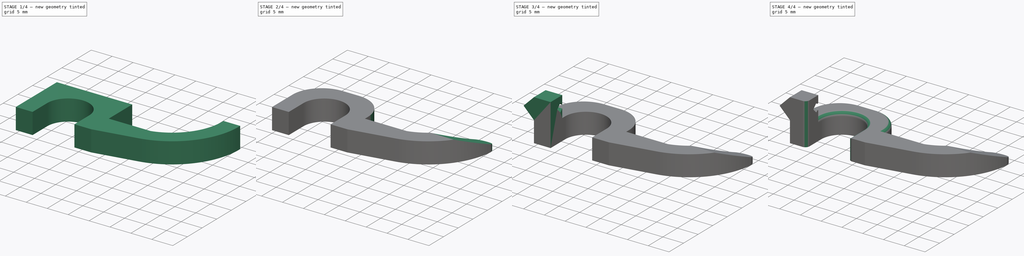
[diagram: build sequence overview — one tinted view per stage of 4, left to right]
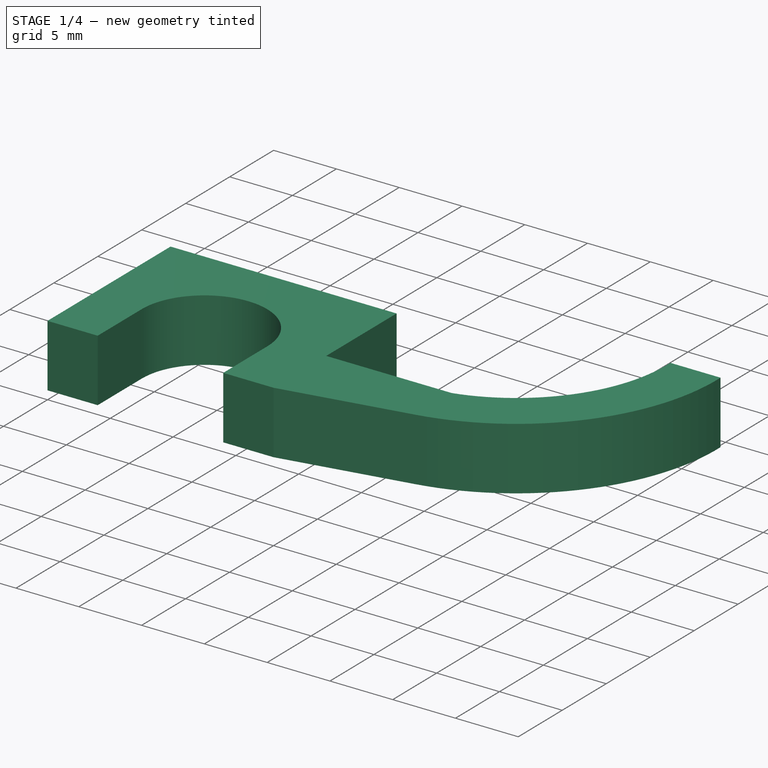
[diagram: stage 1 of 4 — iso view after this stage's code; geometry added in this stage tinted green]
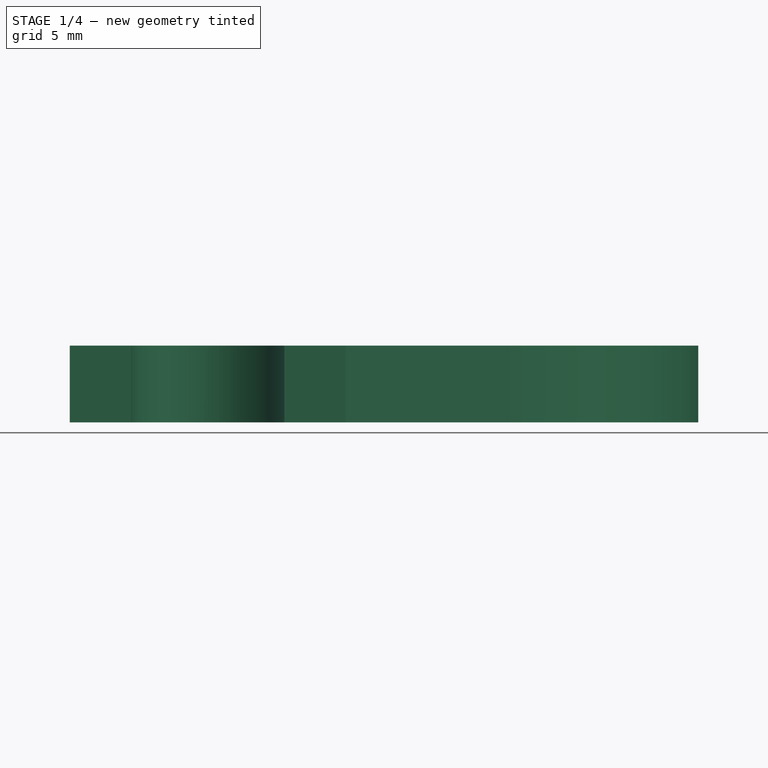
[diagram: stage 1 of 4 — front view after this stage's code; geometry added in this stage tinted green]
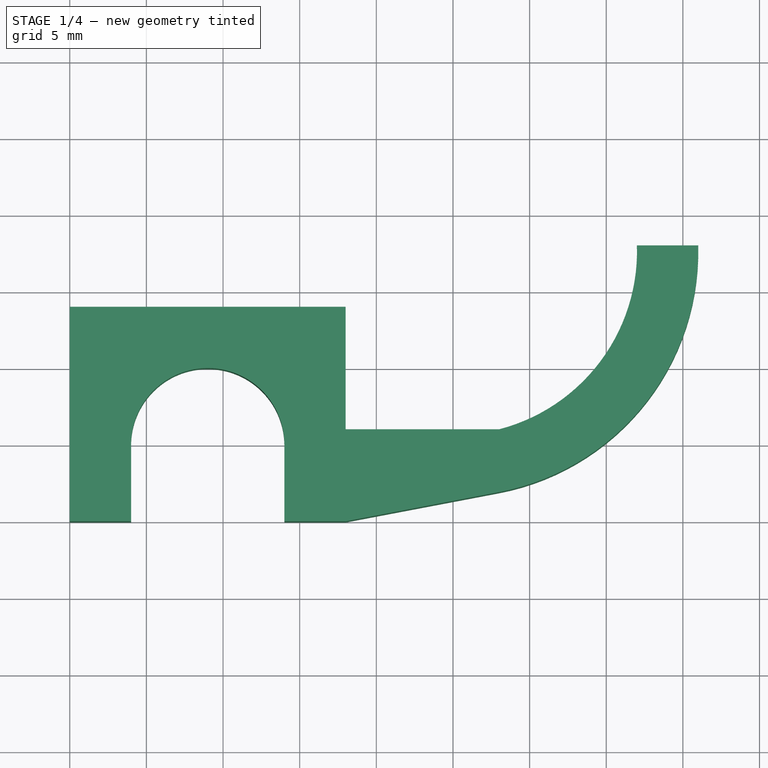
[diagram: stage 1 of 4 — top view after this stage's code; geometry added in this stage tinted green]
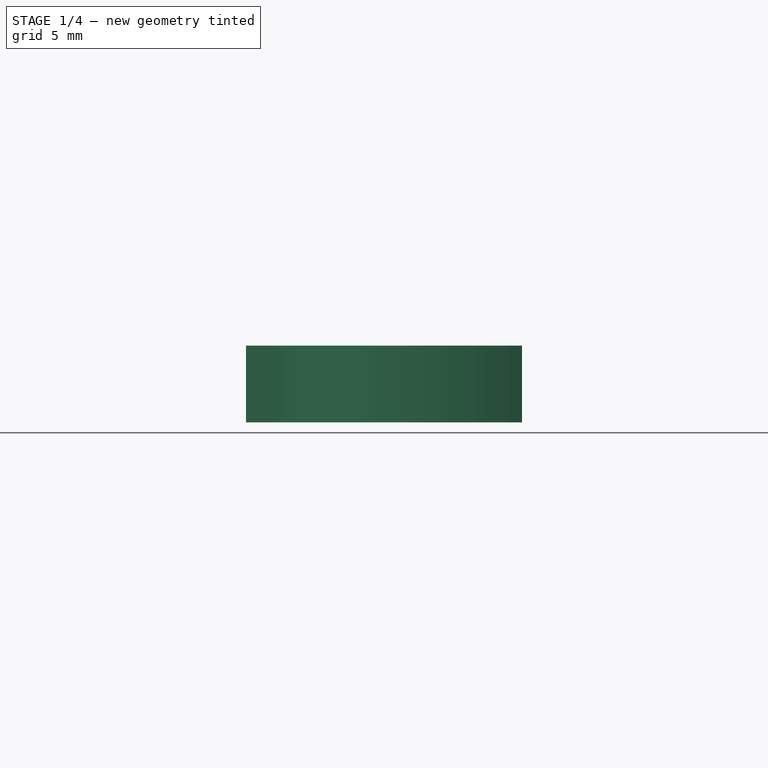
[diagram: stage 1 of 4 — right view after this stage's code; geometry added in this stage tinted green]
FCSTD DOCUMENT  (FreeCAD 1.0R39319 (Git))
Label: shelfHook
License: All rights reserved
LicenseURL: https://en.wikipedia.org/wiki/All_rights_reserved
objects: PartDesign::Fillet×5, PartDesign::Chamfer×2, Sketcher::SketchObject×1, PartDesign::Pad×1, PartDesign::AdditiveBox×1, PartDesign::SubtractiveBox×1, PartDesign::Body×1
note: 33 computed .brp shape members not serialized (recipe doc carries the construction recipe); baked Part::Feature solids carry a one-line shape summary decoded from their .brp

FEATURE [Sketcher::SketchObject] Sketch
  ArcFitTolerance = 1e-06
  AttachmentSupport = -> [XY_Plane]
  FullyConstrained = true
  MakeInternals = false
  MapMode = 5
  sketch-geometry (17):
    g0: LineSegment [constr] StartX=0 StartY=0 StartZ=0 EndX=18 EndY=0 EndZ=0
    g1: LineSegment [constr] StartX=18 StartY=0 StartZ=0 EndX=18 EndY=14 EndZ=0
    g2: LineSegment StartX=18 StartY=14 StartZ=0 EndX=0 EndY=14 EndZ=0
    g3: LineSegment StartX=0 StartY=14 StartZ=0 EndX=0 EndY=0 EndZ=0
    g4: LineSegment StartX=18 StartY=14 StartZ=0 EndX=18 EndY=6 EndZ=0
    g5: LineSegment StartX=0 StartY=0 StartZ=0 EndX=4 EndY=0 EndZ=0
    g6: LineSegment StartX=4 StartY=0 StartZ=0 EndX=4 EndY=10 EndZ=0
    g7: LineSegment StartX=4 StartY=10 StartZ=0 EndX=14 EndY=10 EndZ=0
    g8: LineSegment StartX=14 StartY=10 StartZ=0 EndX=14 EndY=0 EndZ=0
    g9: LineSegment StartX=14 StartY=0 StartZ=0 EndX=18 EndY=0 EndZ=0
    g10: LineSegment [constr] StartX=18 StartY=14 StartZ=0 EndX=28 EndY=14 EndZ=0
    g11: LineSegment [constr] StartX=28 StartY=14 StartZ=0 EndX=28 EndY=1.90468 EndZ=0
    g12: LineSegment StartX=28 StartY=1.90468 StartZ=0 EndX=18 EndY=0 EndZ=0
    g13: LineSegment StartX=18 StartY=6 StartZ=0 EndX=28 EndY=6 EndZ=0
    g14: ArcOfCircle CenterX=25.0066 CenterY=17.6206 CenterZ=0 NormalX=0 NormalY=0 NormalZ=1 AngleXU=0 Radius=12 StartAngle=4.9645 EndAngle=6.3148
    g15: ArcOfCircle CenterX=25.0066 CenterY=17.6206 CenterZ=0 NormalX=0 NormalY=0 NormalZ=1 AngleXU=0 Radius=15.9985 StartAngle=4.90061 EndAngle=6.3069
    g16: LineSegment StartX=37.0006 StartY=18 StartZ=0 EndX=41.0006 EndY=18 EndZ=0
  constraints (48):
    c: Coincident(g0,g1)
    c: Coincident(g1,g2)
    c: Coincident(g2,g3)
    c: Coincident(g3,g0)
    c: Horizontal(g0)
    c: Horizontal(g2)
    c: Vertical(g1)
    c: Vertical(g3)
    c: Coincident(g0,g-1)
    c: PointOnObject(g4,g1)
    c: Coincident(g4,g1)
    c: Coincident(g5,g0)
    c: PointOnObject(g5,g0)
    c: Coincident(g6,g5)
    c: Vertical(g6)
    c: Coincident(g7,g6)
    c: Horizontal(g7)
    c: Coincident(g8,g7)
    c: PointOnObject(g8,g0)
    c: Vertical(g8)
    c: Coincident(g9,g8)
    c: Coincident(g9,g0)
    c: DistanceX(g7,g7) = 10
    c: Equal(g9,g5)
    c: Distance(g9,g9) = 4
    c: DistanceY(g6,g6) = 10
    c: Distance(g2,g7) = 4
    c: Coincident(g10,g1)
    c: Horizontal(g10)
    c: Coincident(g11,g10)
    c: Vertical(g11)
    c: Coincident(g12,g11)
    c: Coincident(g12,g0)
    c: DistanceX(g10,g10) = 10
    c: Coincident(g13,g4)
    c: PointOnObject(g13,g11)
    c: Horizontal(g13)
    c: Coincident(g14,g13)
    c: Coincident(g15,g14)
    c: Coincident(g15,g11)
    c: Coincident(g16,g14)
    c: Coincident(g16,g15)
    c: DistanceX(g16,g16) = 4
    c: Tangent(g15,g12)
    c: Horizontal(g16)
    c: Distance(g0,g13) = 6
    c: Radius(g14) = 12
    c: Distance(g-1,g16) = 18
FEATURE [PartDesign::Pad] Pad
  Direction = (0,0,1)
  Length = 5
  Length2 = 10
  Profile = -> Sketch
  ReferenceAxis = -> Sketch [N_Axis]
  Refine = true
  Suppressed = false
  Type = 0
FEATURE [PartDesign::Fillet] Fillet
  Base = -> Pad [Edge14,Edge11]
  BaseFeature = -> Pad
  Radius = 4.99999
  Refine = true
  SupportTransform = false
  Suppressed = false
  UseAllEdges = false
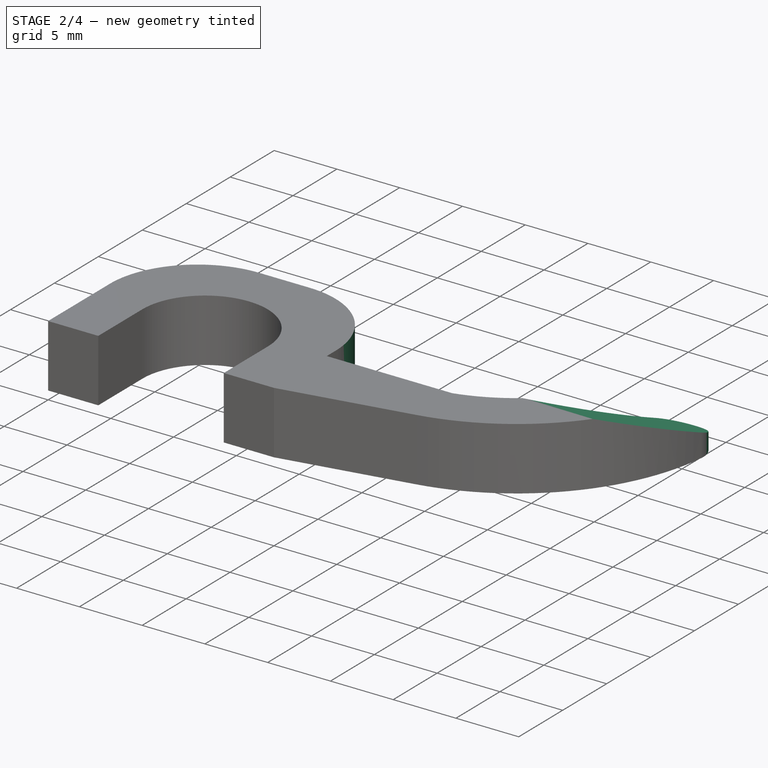
[diagram: stage 2 of 4 — iso view after this stage's code; geometry added in this stage tinted green]
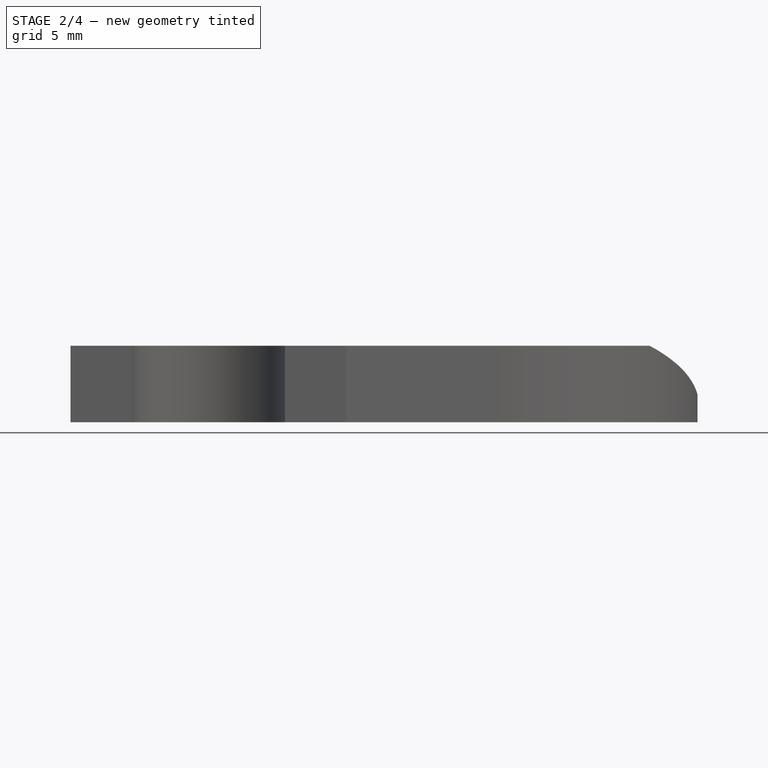
[diagram: stage 2 of 4 — front view after this stage's code; geometry added in this stage tinted green]
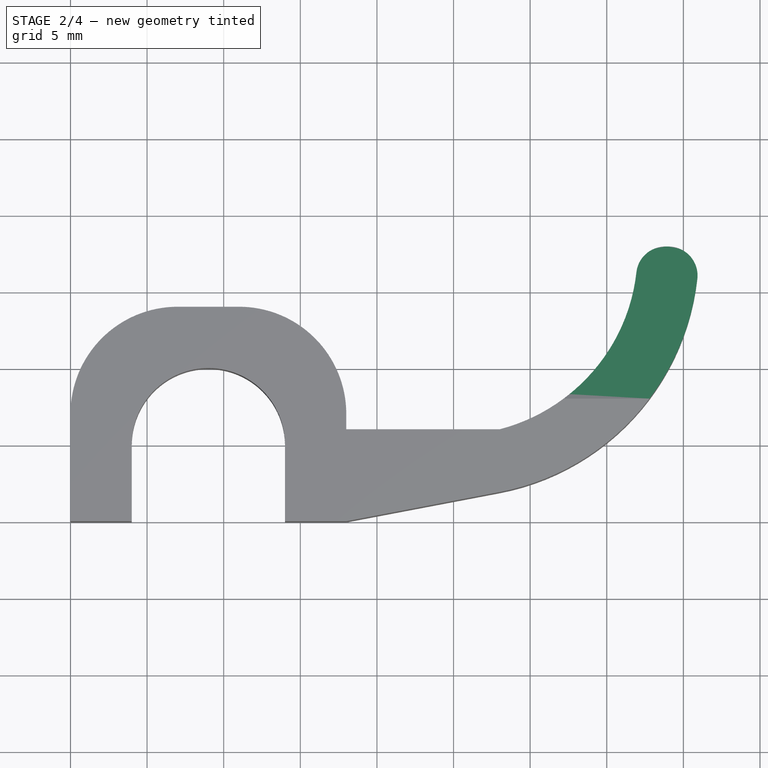
[diagram: stage 2 of 4 — top view after this stage's code; geometry added in this stage tinted green]
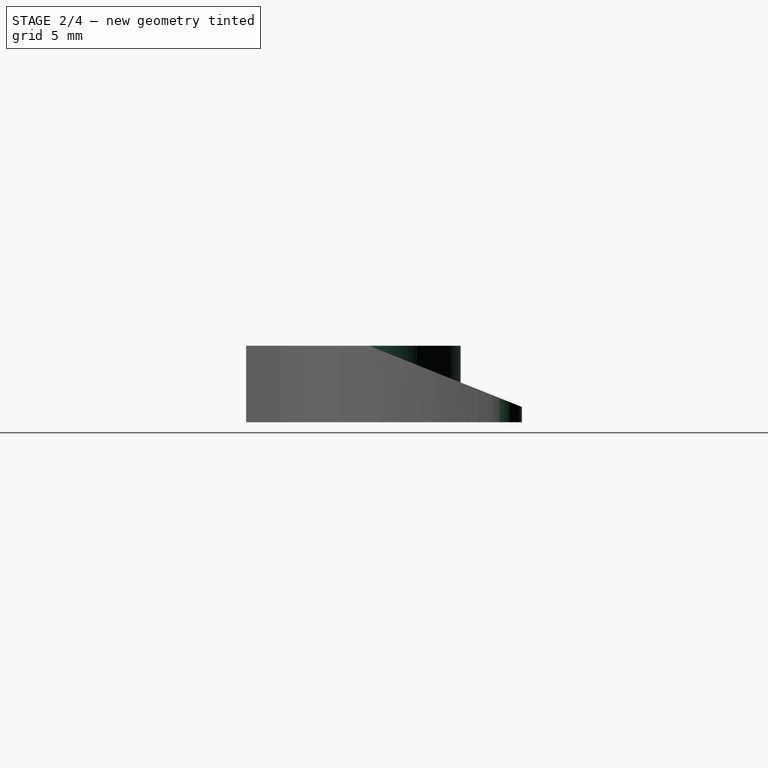
[diagram: stage 2 of 4 — right view after this stage's code; geometry added in this stage tinted green]
FEATURE [PartDesign::Fillet] Fillet001
  Base = -> Fillet [Edge36,Edge38]
  BaseFeature = -> Fillet
  Radius = 7
  Refine = true
  SupportTransform = false
  Suppressed = false
  UseAllEdges = false
FEATURE [PartDesign::Chamfer] Chamfer
  Angle = 45
  Base = -> Fillet001 [Edge46]
  BaseFeature = -> Fillet001
  ChamferType = 1
  FlipDirection = false
  Refine = true
  Size = 4
  Size2 = 10
  SupportTransform = false
  Suppressed = false
  UseAllEdges = false
FEATURE [PartDesign::Fillet] Fillet002
  Base = -> Chamfer [Edge8,Edge1]
  BaseFeature = -> Chamfer
  Radius = 1.9
  Refine = true
  SupportTransform = false
  Suppressed = false
  UseAllEdges = false
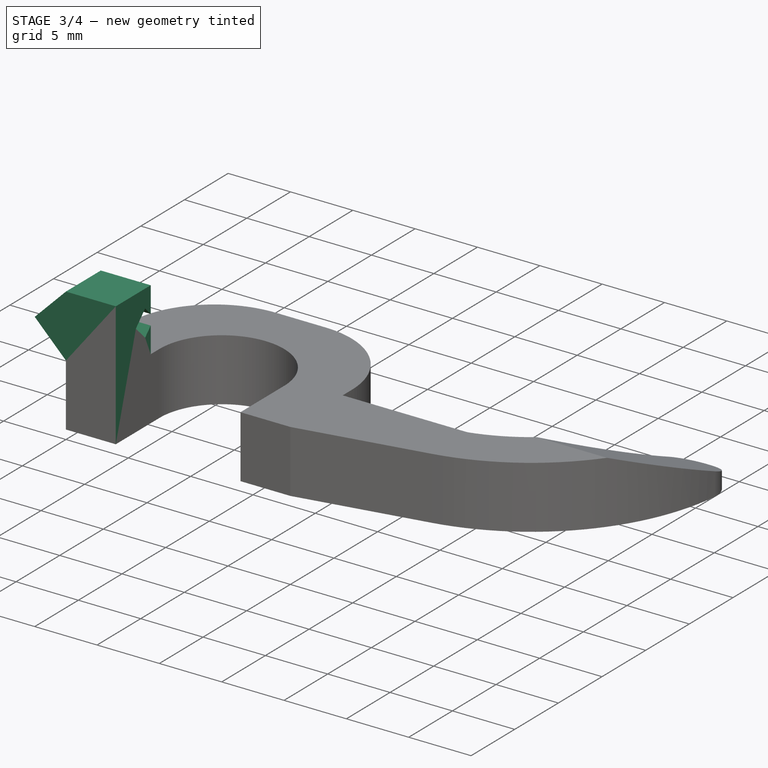
[diagram: stage 3 of 4 — iso view after this stage's code; geometry added in this stage tinted green]
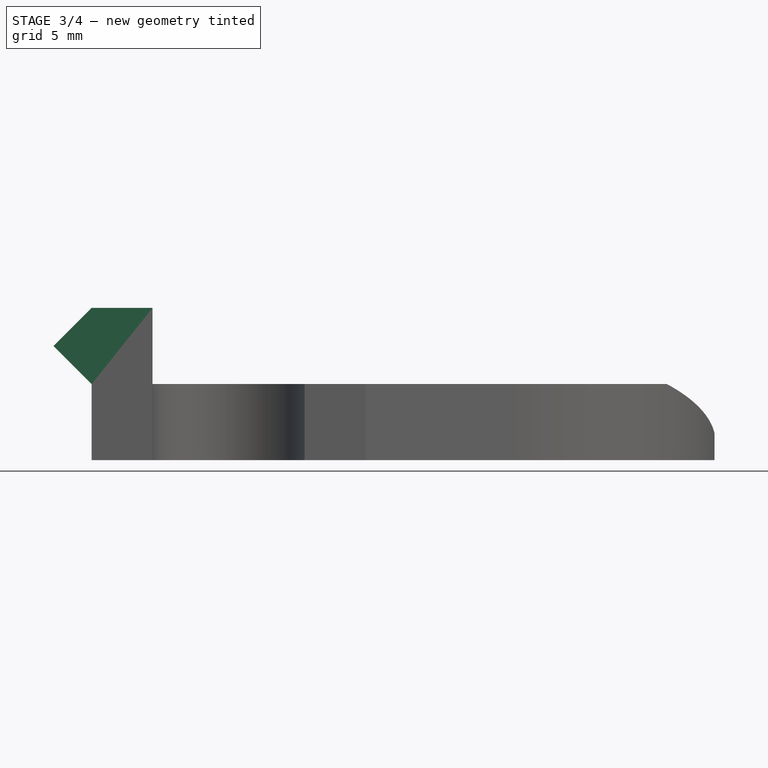
[diagram: stage 3 of 4 — front view after this stage's code; geometry added in this stage tinted green]
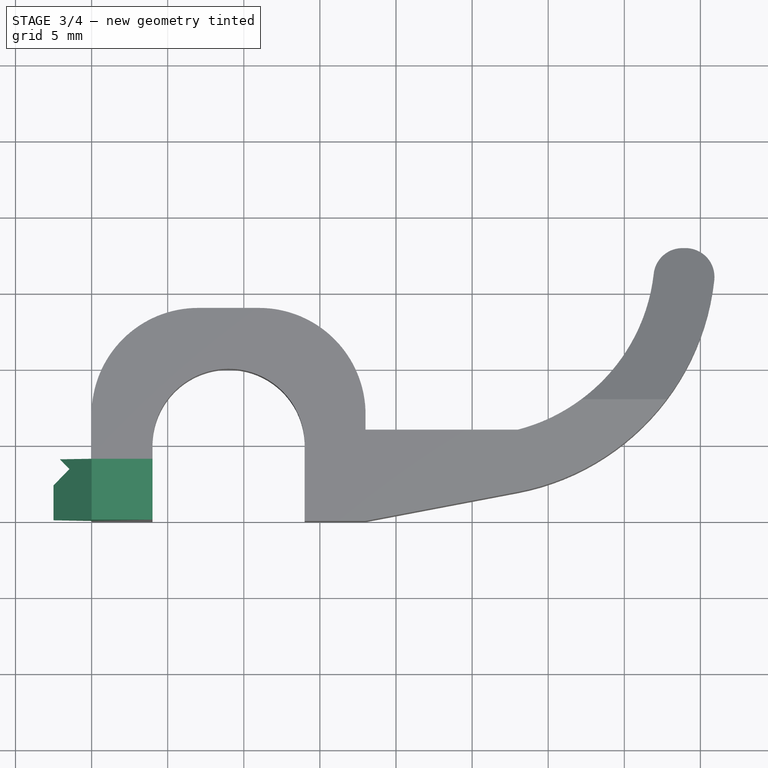
[diagram: stage 3 of 4 — top view after this stage's code; geometry added in this stage tinted green]
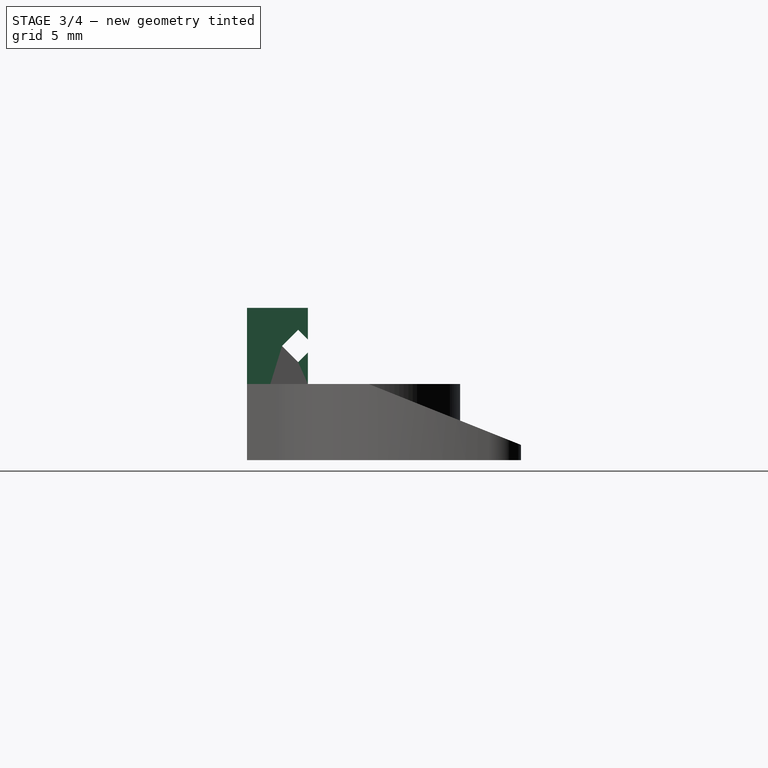
[diagram: stage 3 of 4 — right view after this stage's code; geometry added in this stage tinted green]
FEATURE [PartDesign::AdditiveBox] Box
  AttacherType = Attacher::AttachEngine3D
  AttachmentSupport = -> [Fillet002]
  BaseFeature = -> Fillet002
  Height = 4
  Length = 6.5
  MapMode = 7
  Placement = pos=(4,0,5) rot=(0,0.707107,0.707107;3.14159rad)
  Refine = true
  Suppressed = false
  Width = 5
FEATURE [PartDesign::Chamfer] Chamfer001
  Angle = 45
  Base = -> Box [Edge68,Edge66]
  BaseFeature = -> Box
  ChamferType = 0
  FlipDirection = false
  Placement = pos=(4,0,5) rot=(0,0.707107,0.707107;3.14159rad)
  Refine = true
  Size = 2.49999
  Size2 = 1
  SupportTransform = false
  Suppressed = false
  UseAllEdges = false
FEATURE [PartDesign::SubtractiveBox] Box001
  AttacherType = Attacher::AttachEngine3D
  AttachmentOffset = pos=(1.7,2.5,0) rot=(0,0,1;2.35619rad)
  AttachmentSupport = -> [Chamfer001]
  BaseFeature = -> Chamfer001
  Height = 13
  Length = 1.5
  MapMode = 7
  Placement = pos=(4,2.3,7.5) rot=(-0.357407,-0.862856,0.357407;1.71777rad)
  Refine = true
  Suppressed = false
  Width = 1.5
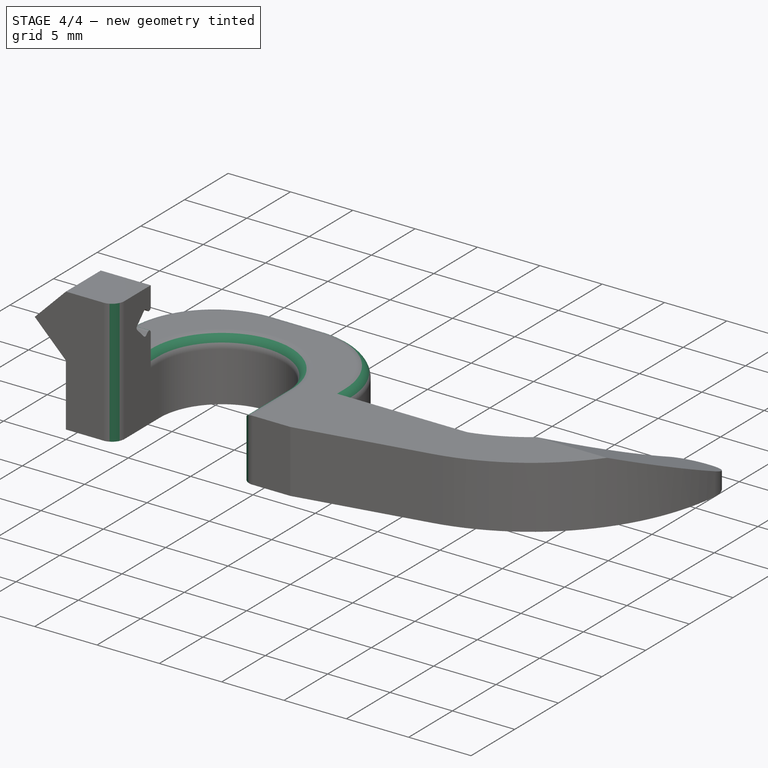
[diagram: stage 4 of 4 — iso view after this stage's code; geometry added in this stage tinted green]
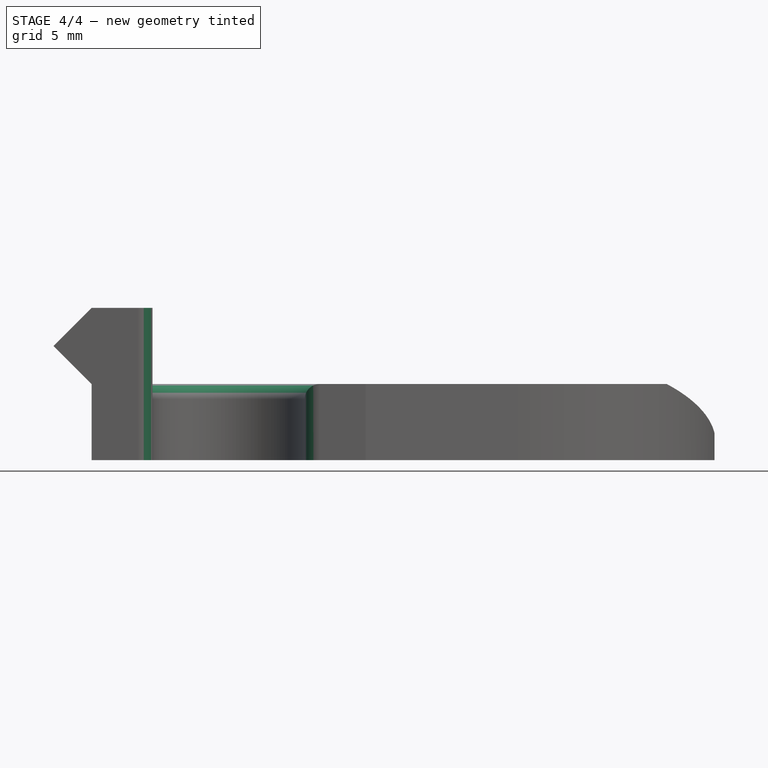
[diagram: stage 4 of 4 — front view after this stage's code; geometry added in this stage tinted green]
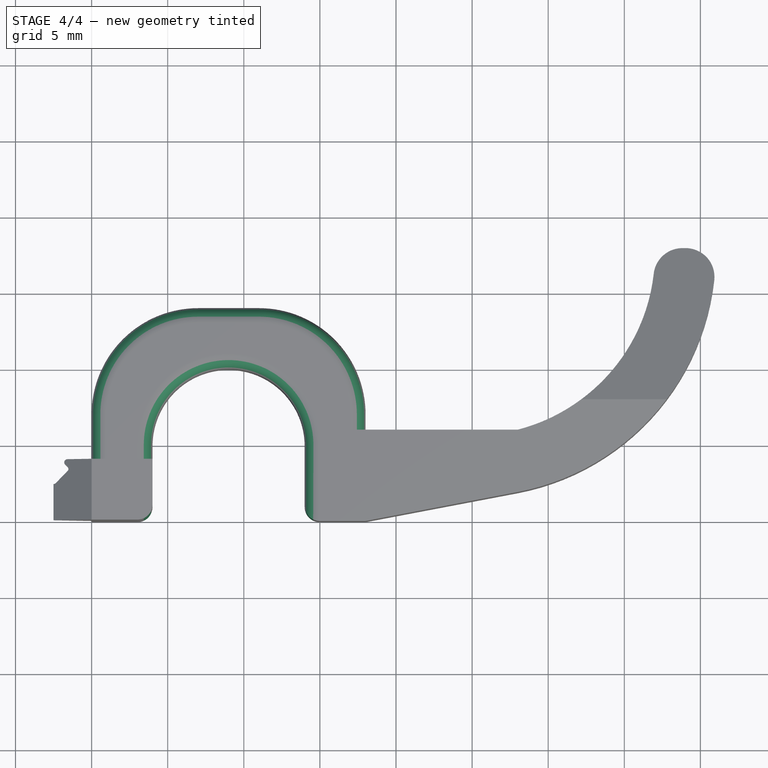
[diagram: stage 4 of 4 — top view after this stage's code; geometry added in this stage tinted green]
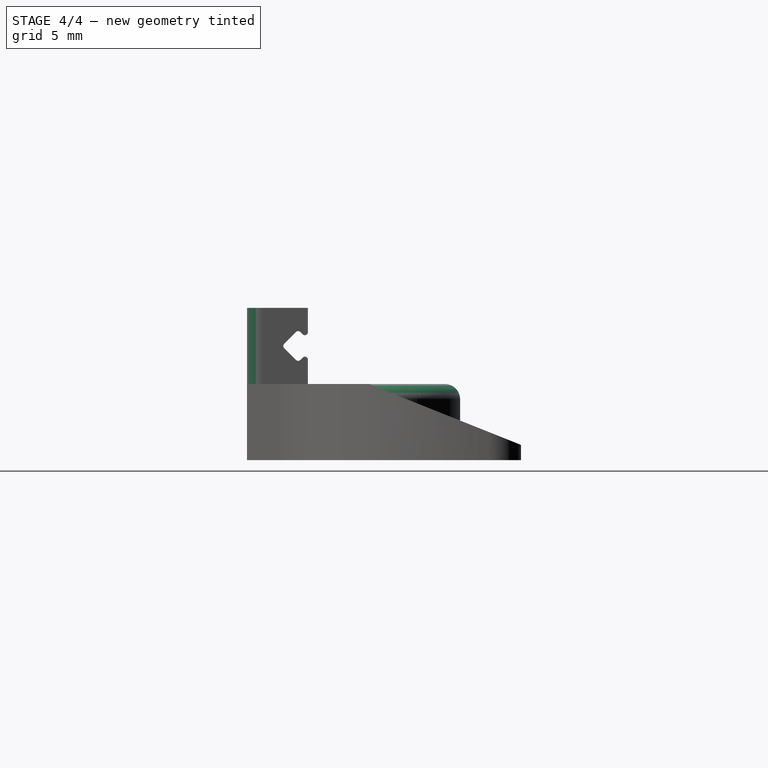
[diagram: stage 4 of 4 — right view after this stage's code; geometry added in this stage tinted green]
FEATURE [PartDesign::Fillet] Fillet003
  Base = -> Box001 [Edge48,Edge2,Edge47,Edge10,Edge28]
  BaseFeature = -> Box001
  Placement = pos=(4,2.3,7.5) rot=(-0.357407,-0.862856,0.357407;1.71777rad)
  Radius = 0.2
  Refine = true
  SupportTransform = false
  Suppressed = false
  UseAllEdges = false
FEATURE [PartDesign::Fillet] Fillet004
  Base = -> Fillet003 [Edge65,Edge105,Edge18,Edge70]
  BaseFeature = -> Fillet003
  Placement = pos=(4,2.3,7.5) rot=(-0.357407,-0.862856,0.357407;1.71777rad)
  Radius = 1
  Refine = true
  SupportTransform = false
  Suppressed = false
  UseAllEdges = false
FEATURE [PartDesign::Body] Body
  AllowCompound = false
  Group = -> [Sketch,Pad,Fillet,Fillet001,Chamfer,Fillet002,Box,Chamfer001,Box001,Fillet003,Fillet004]
  Origin = -> Origin
  Tip = -> Fillet004
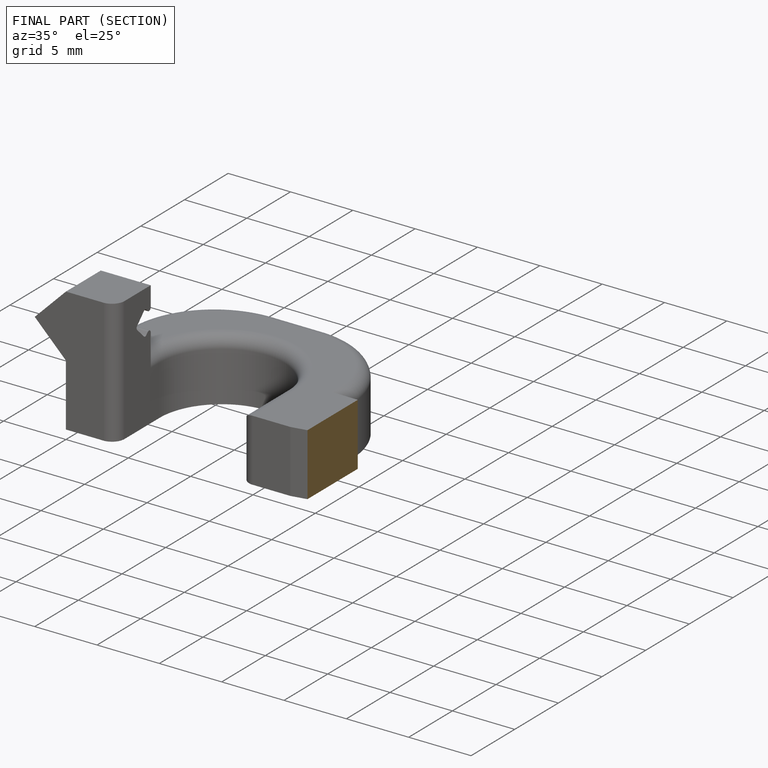
[diagram: finished part — half-section view (interior)]
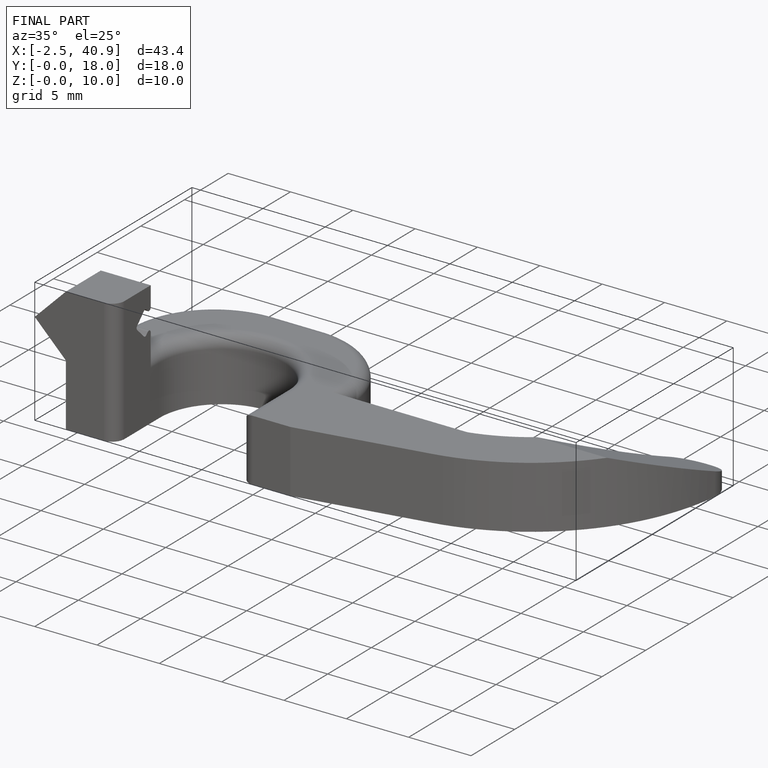
[diagram: finished part — iso view with bounding-box wireframe]
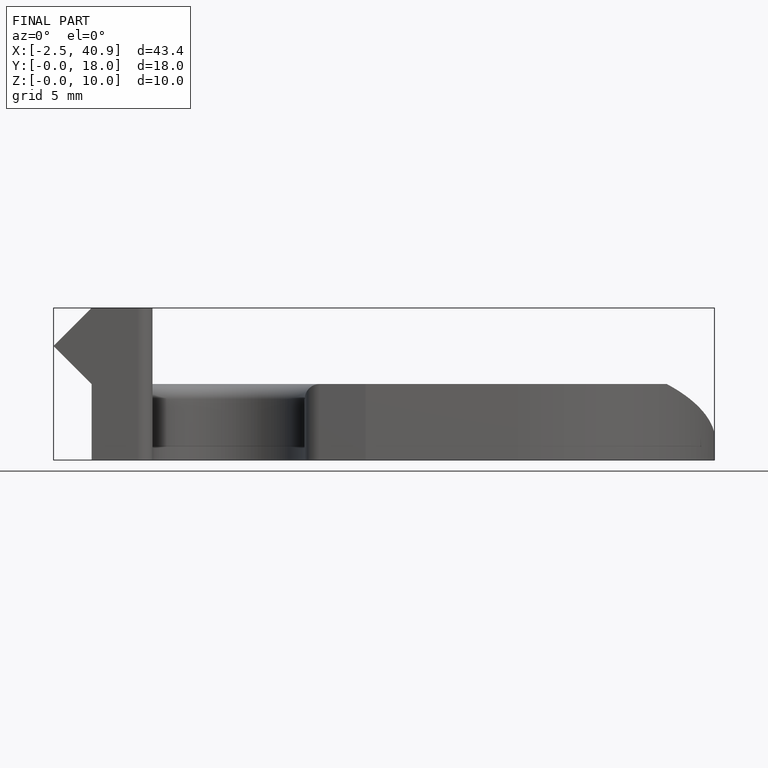
[diagram: finished part — front view with bounding-box wireframe]
